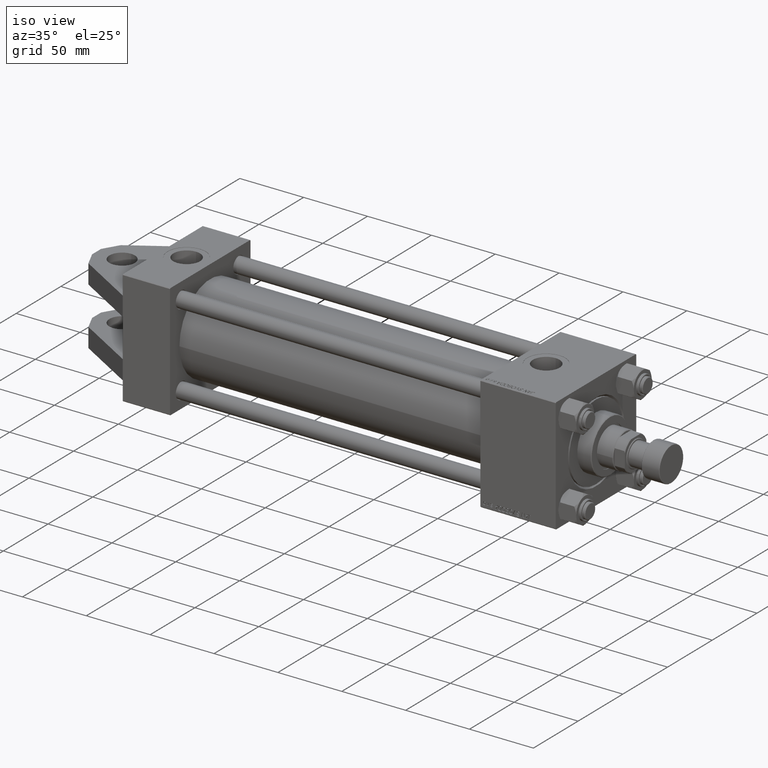
[diagram: clean part render]
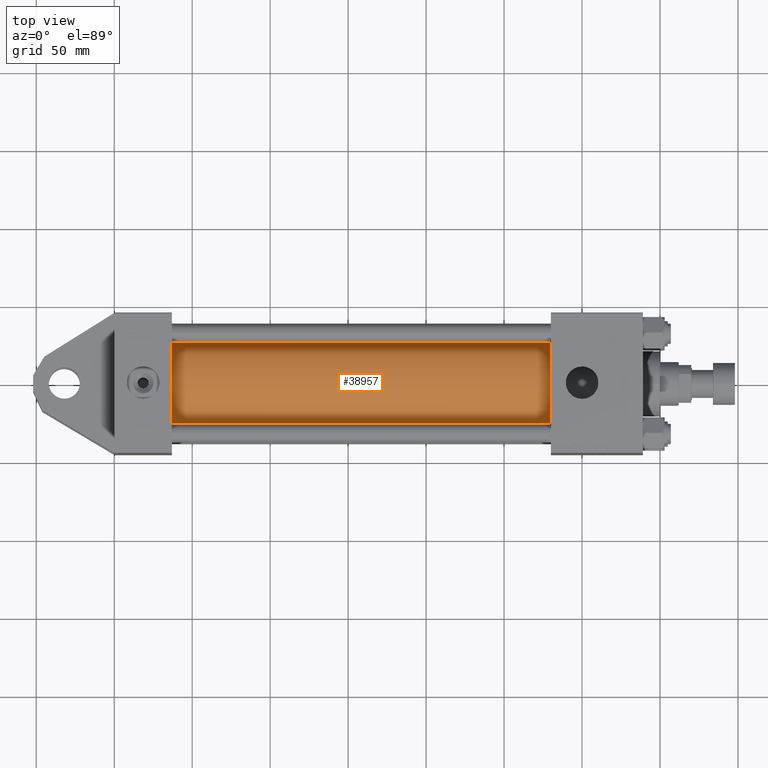
[diagram: tour spotlight — one face highlighted and labeled with its STEP entity id]
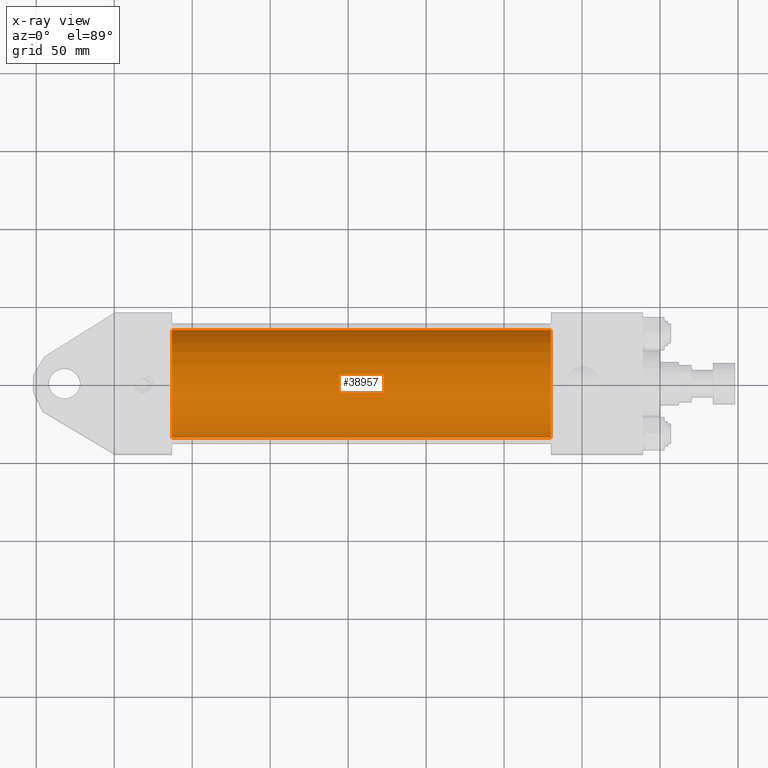
[diagram: x-ray of the same camera — body ghosted, this tour face saturated]
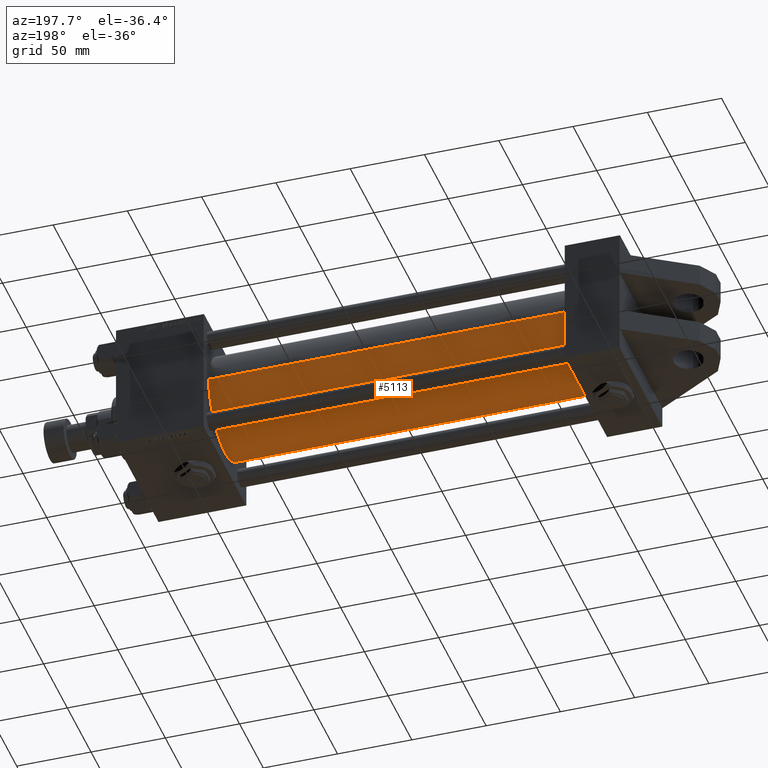
[diagram: tour spotlight — one face highlighted and labeled with its STEP entity id]
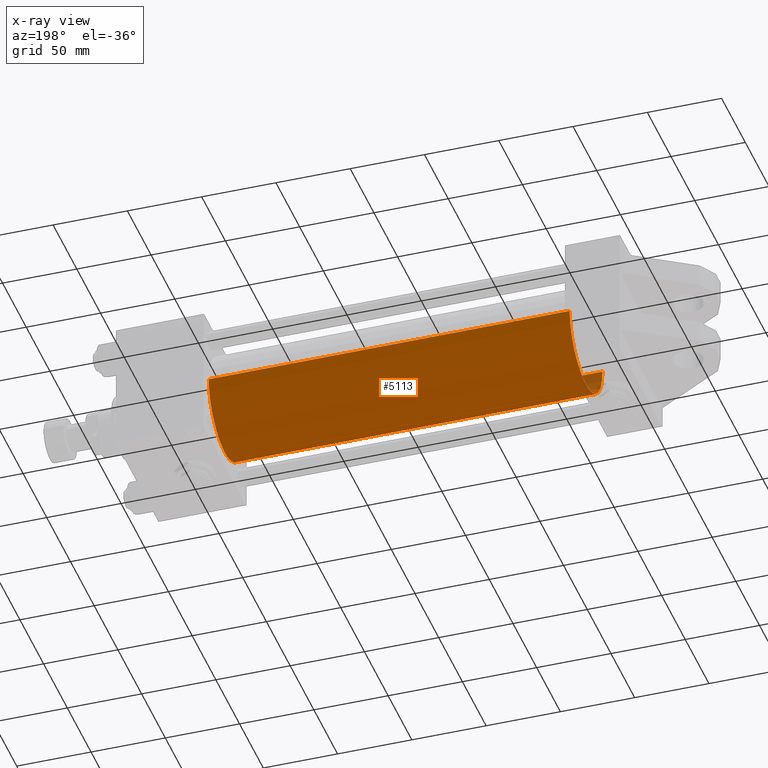
[diagram: x-ray of the same camera — body ghosted, this tour face saturated]
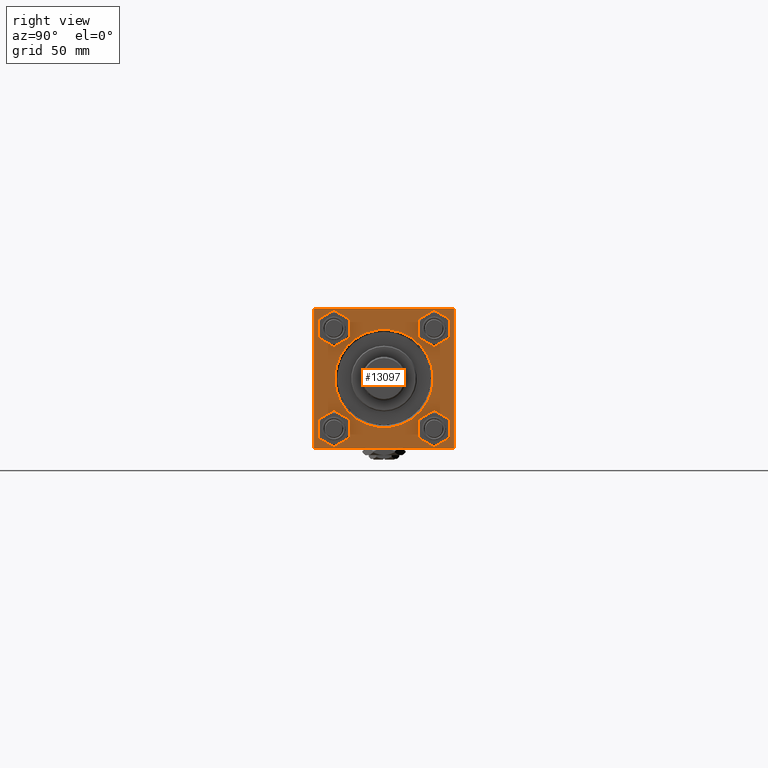
[diagram: tour spotlight — one face highlighted and labeled with its STEP entity id]
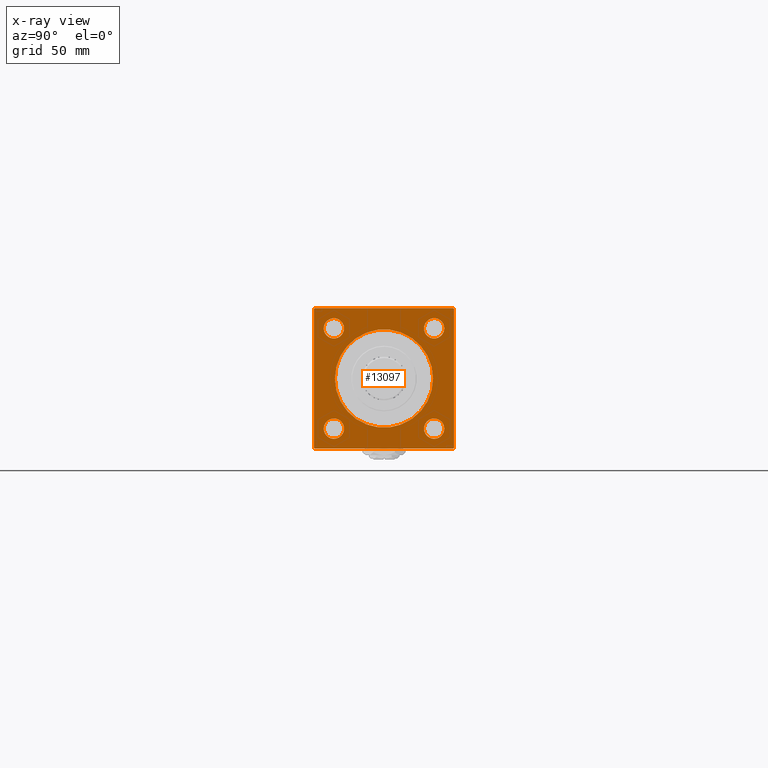
[diagram: x-ray of the same camera — body ghosted, this tour face saturated]
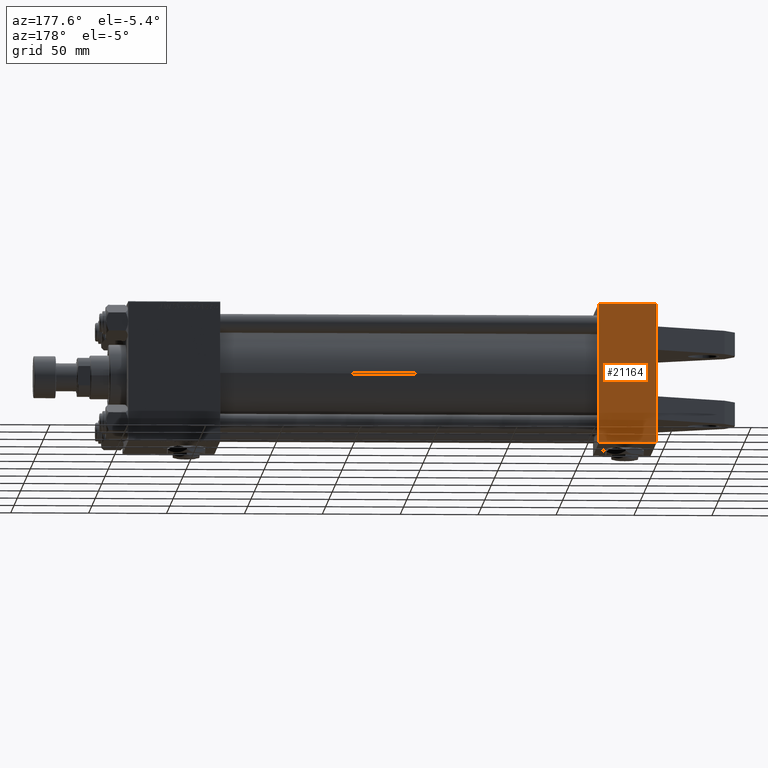
[diagram: tour spotlight — one face highlighted and labeled with its STEP entity id]
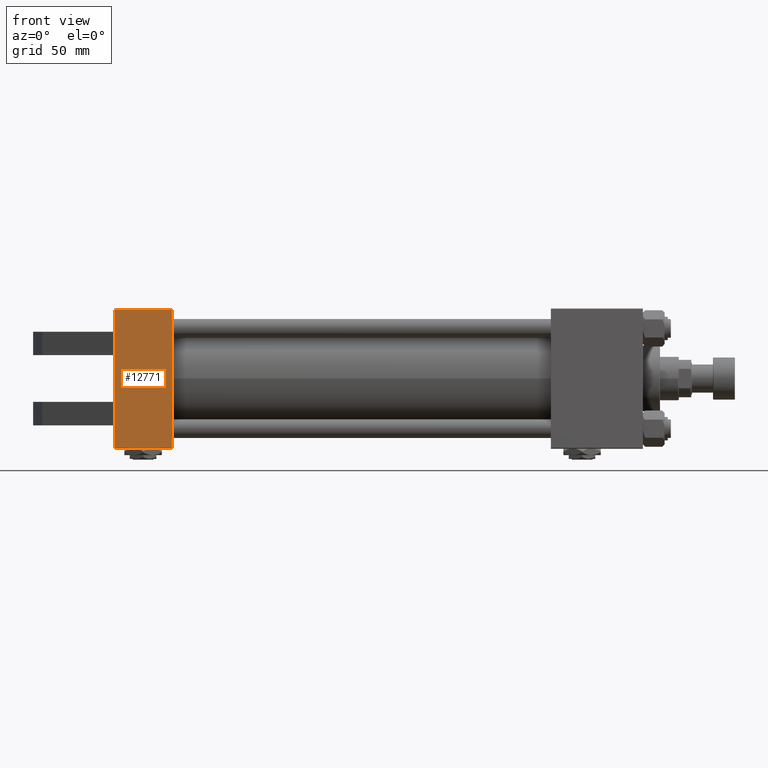
[diagram: tour spotlight — one face highlighted and labeled with its STEP entity id]
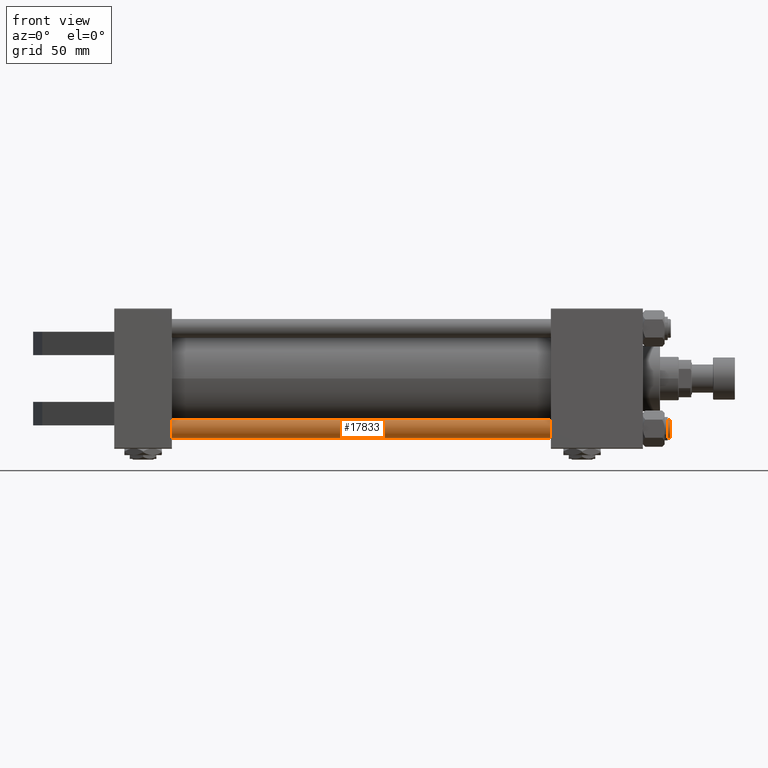
[diagram: tour spotlight — one face highlighted and labeled with its STEP entity id]
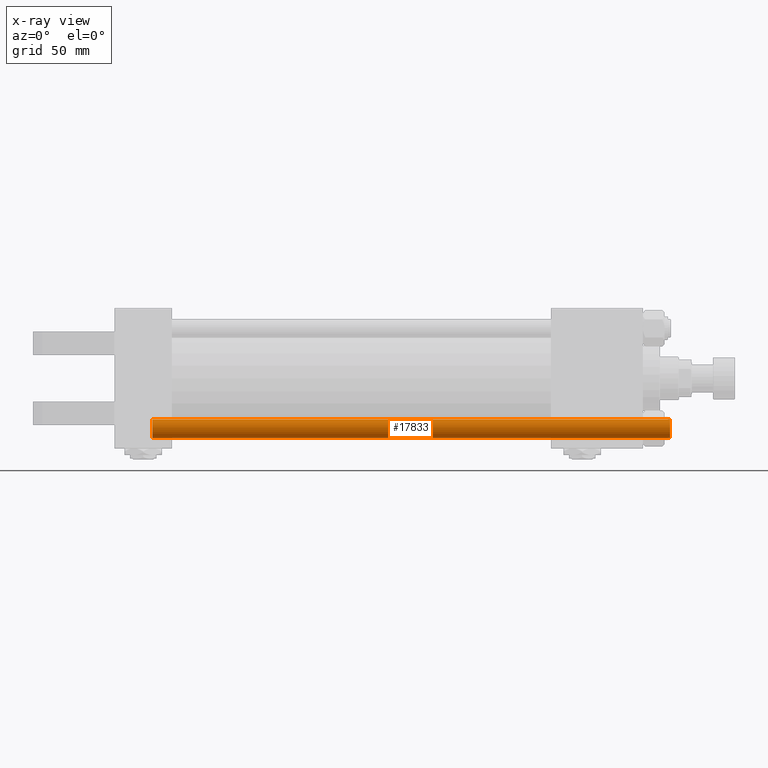
[diagram: x-ray of the same camera — body ghosted, this tour face saturated]
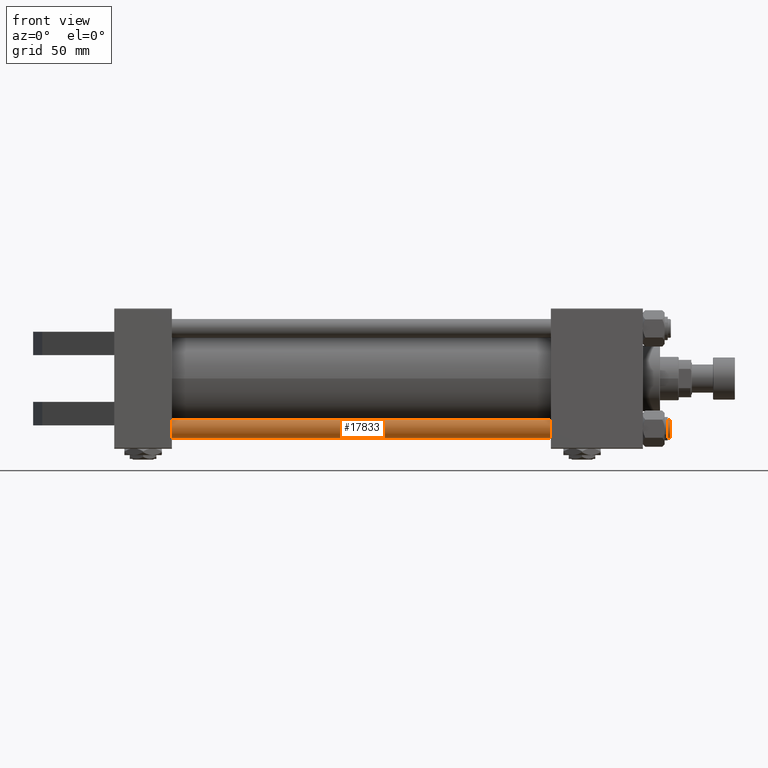
[diagram: tour spotlight — one face highlighted and labeled with its STEP entity id]
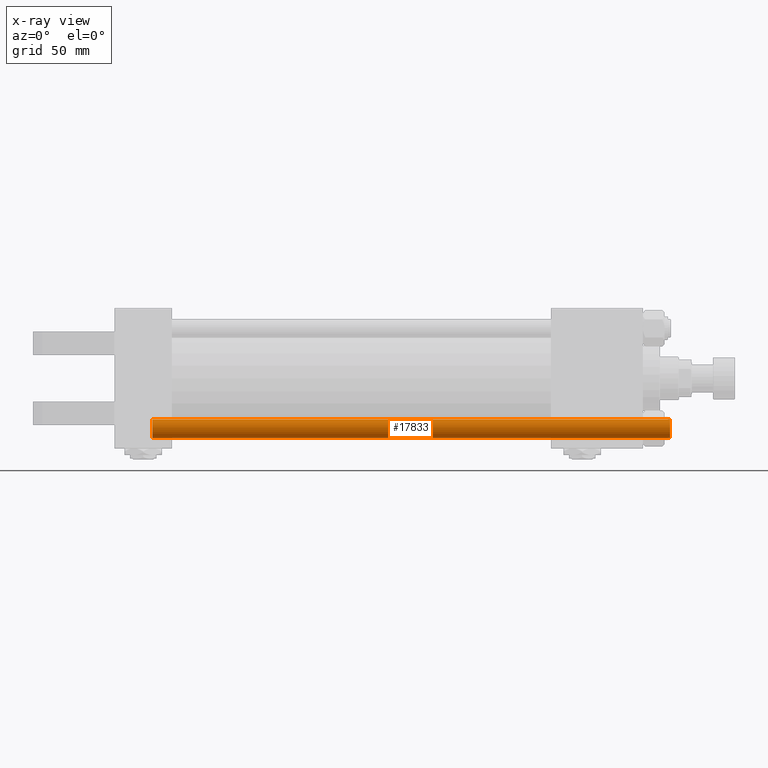
[diagram: x-ray of the same camera — body ghosted, this tour face saturated]
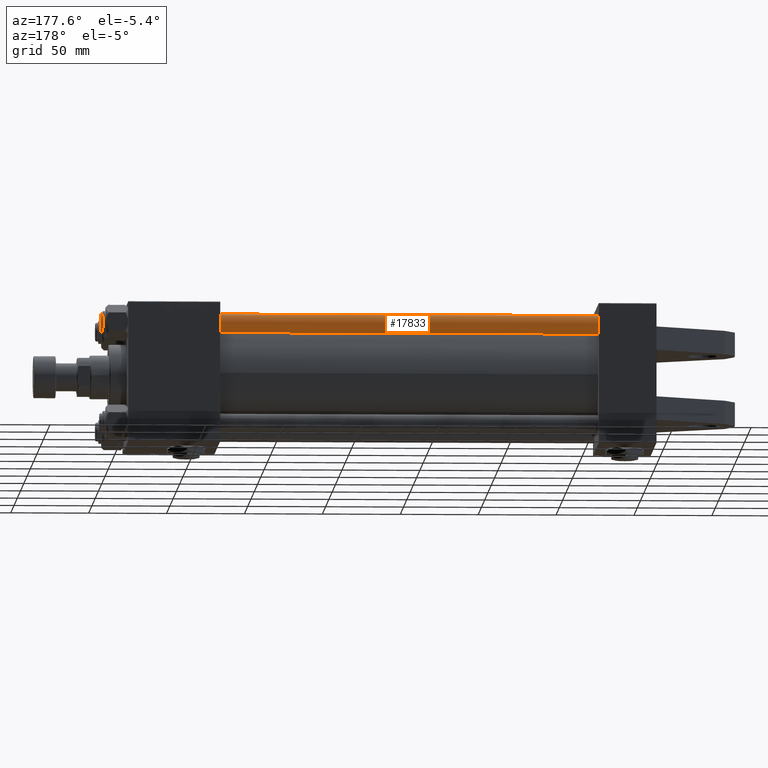
[diagram: tour spotlight — one face highlighted and labeled with its STEP entity id]
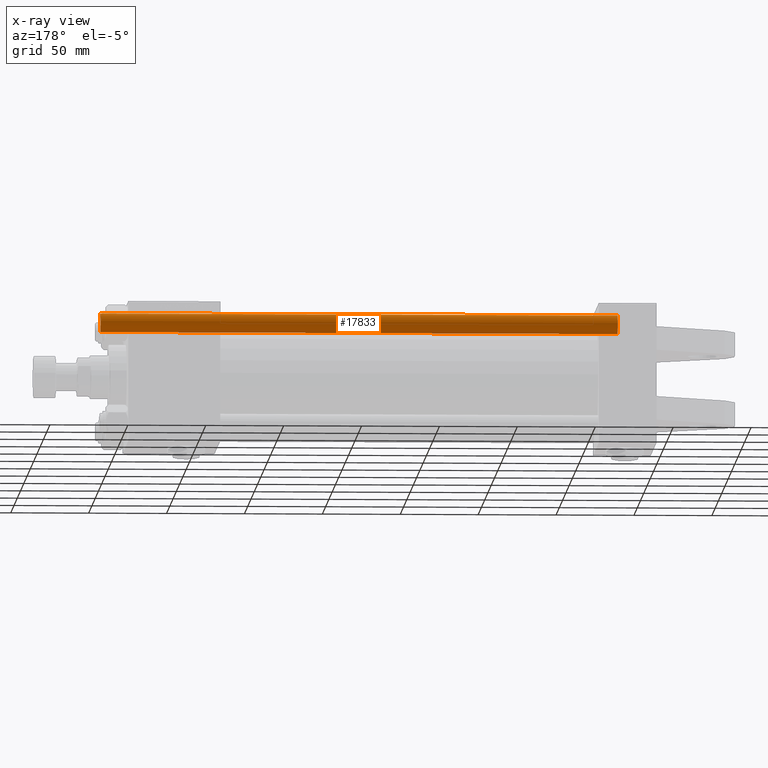
[diagram: x-ray of the same camera — body ghosted, this tour face saturated]
A machine part: a face-by-face anatomy tour. The part has 1244 B-rep faces; the first image is the clean iso view, then the 8 largest visible faces are spotlighted one at a time (largest first), each with its STEP entity span.

Face 1 — top view, entity #38957. An x-ray twin of the same camera follows (body ghosted, this face saturated) — the face is partly hidden behind the body. In plain terms, the highlighted cylindrical surface (partial cylindrical patch) has radius 34.5 mm, axis along (-1, -0, 0).
Definition (entity closure, byte-faithful):
#274 = EDGE_CURVE ( 'NONE', #37276, #15773, #41613, .T. ) ;
#1357 = DIRECTION ( 'NONE',  ( 0.000000000000000000, 0.000000000000000000, 1.000000000000000000 ) ) ;
#1564 = CARTESIAN_POINT ( 'NONE',  ( 37.00000000000000711, 7.555845051047534515E-16, -34.49999999999999289 ) ) ;
#3101 = ORIENTED_EDGE ( 'NONE', *, *, #42534, .T. ) ;
#4384 = EDGE_LOOP ( 'NONE', ( #41202, #33263, #3101, #28531 ) ) ;
#5592 = DIRECTION ( 'NONE',  ( 1.000000000000000000, -0.000000000000000000, 0.000000000000000000 ) ) ;
#6102 = CARTESIAN_POINT ( 'NONE',  ( 279.9999999999999432, -3.469446951953614189E-15, 34.49999999999999289 ) ) ;
#6133 = AXIS2_PLACEMENT_3D ( 'NONE', #38522, #46949, #39291 ) ;
#6484 = EDGE_CURVE ( 'NONE', #39722, #21402, #36788, .T. ) ;
#10266 = VECTOR ( 'NONE', #14833, 1000.000000000000000 ) ;
#10918 = LINE ( 'NONE', #18600, #33555 ) ;
#12742 = CARTESIAN_POINT ( 'NONE',  ( 279.9999999999999432, 7.555845051047534515E-16, -34.49999999999999289 ) ) ;
#14577 = LINE ( 'NONE', #30719, #10266 ) ;
#14833 = DIRECTION ( 'NONE',  ( -1.000000000000000000, -0.000000000000000000, -0.000000000000000000 ) ) ;
#15773 = VERTEX_POINT ( 'NONE', #12742 ) ;
#15843 = CARTESIAN_POINT ( 'NONE',  ( 37.00000000000000711, -3.469446951953614189E-15, 34.49999999999999289 ) ) ;
#18452 = CYLINDRICAL_SURFACE ( 'NONE', #28735, 34.49999999999999289 ) ;
#18600 = CARTESIAN_POINT ( 'NONE',  ( 279.9999999999999432, 7.555845051047534515E-16, -34.49999999999999289 ) ) ;
#19118 = DIRECTION ( 'NONE',  ( -1.000000000000000000, -0.000000000000000000, -0.000000000000000000 ) ) ;
#21402 = VERTEX_POINT ( 'NONE', #1564 ) ;
#26513 = CARTESIAN_POINT ( 'NONE',  ( 37.00000000000000711, -3.469446951953614189E-15, 0.000000000000000000 ) ) ;
#27934 = DIRECTION ( 'NONE',  ( 0.000000000000000000, 0.000000000000000000, 1.000000000000000000 ) ) ;
#28531 = ORIENTED_EDGE ( 'NONE', *, *, #6484, .T. ) ;
#28735 = AXIS2_PLACEMENT_3D ( 'NONE', #34582, #30611, #27934 ) ;
#30611 = DIRECTION ( 'NONE',  ( -1.000000000000000000, -0.000000000000000000, -0.000000000000000000 ) ) ;
#30719 = CARTESIAN_POINT ( 'NONE',  ( 279.9999999999999432, -3.469446951953614189E-15, 34.49999999999999289 ) ) ;
#33263 = ORIENTED_EDGE ( 'NONE', *, *, #274, .F. ) ;
#33555 = VECTOR ( 'NONE', #19118, 1000.000000000000000 ) ;
#34582 = CARTESIAN_POINT ( 'NONE',  ( 279.9999999999999432, -3.469446951953614189E-15, 0.000000000000000000 ) ) ;
#36788 = CIRCLE ( 'NONE', #43528, 34.49999999999999289 ) ;
#37276 = VERTEX_POINT ( 'NONE', #6102 ) ;
#38522 = CARTESIAN_POINT ( 'NONE',  ( 279.9999999999999432, -3.469446951953614189E-15, 0.000000000000000000 ) ) ;
#38957 = ADVANCED_FACE ( 'NONE', ( #50664 ), #18452, .T. ) ;
#39291 = DIRECTION ( 'NONE',  ( 0.000000000000000000, 0.000000000000000000, -1.000000000000000000 ) ) ;
#39722 = VERTEX_POINT ( 'NONE', #15843 ) ;
#41202 = ORIENTED_EDGE ( 'NONE', *, *, #51044, .F. ) ;
#41613 = CIRCLE ( 'NONE', #6133, 34.49999999999999289 ) ;
#42534 = EDGE_CURVE ( 'NONE', #37276, #39722, #14577, .T. ) ;
#43528 = AXIS2_PLACEMENT_3D ( 'NONE', #26513, #5592, #1357 ) ;
#46949 = DIRECTION ( 'NONE',  ( 1.000000000000000000, 0.000000000000000000, 0.000000000000000000 ) ) ;
#50664 = FACE_OUTER_BOUND ( 'NONE', #4384, .T. ) ;
#51044 = EDGE_CURVE ( 'NONE', #15773, #21402, #10918, .T. ) ;

Face 2 — auxiliary view, entity #5113. An x-ray twin of the same camera follows (body ghosted, this face saturated) — the face is partly hidden behind the body. In plain terms, the highlighted cylindrical surface (partial cylindrical patch) has radius 34.5 mm, axis along (-1, -0, 0).
Definition (entity closure, byte-faithful):
#1564 = CARTESIAN_POINT ( 'NONE',  ( 37.00000000000000711, 7.555845051047534515E-16, -34.49999999999999289 ) ) ;
#2776 = ORIENTED_EDGE ( 'NONE', *, *, #50555, .T. ) ;
#5113 = ADVANCED_FACE ( 'NONE', ( #13345 ), #34230, .T. ) ;
#6102 = CARTESIAN_POINT ( 'NONE',  ( 279.9999999999999432, -3.469446951953614189E-15, 34.49999999999999289 ) ) ;
#7819 = DIRECTION ( 'NONE',  ( 1.000000000000000000, -0.000000000000000000, 0.000000000000000000 ) ) ;
#10266 = VECTOR ( 'NONE', #14833, 1000.000000000000000 ) ;
#10280 = ORIENTED_EDGE ( 'NONE', *, *, #51044, .T. ) ;
#10918 = LINE ( 'NONE', #18600, #33555 ) ;
#12742 = CARTESIAN_POINT ( 'NONE',  ( 279.9999999999999432, 7.555845051047534515E-16, -34.49999999999999289 ) ) ;
#12924 = ORIENTED_EDGE ( 'NONE', *, *, #51211, .F. ) ;
#13345 = FACE_OUTER_BOUND ( 'NONE', #15059, .T. ) ;
#14577 = LINE ( 'NONE', #30719, #10266 ) ;
#14833 = DIRECTION ( 'NONE',  ( -1.000000000000000000, -0.000000000000000000, -0.000000000000000000 ) ) ;
#15059 = EDGE_LOOP ( 'NONE', ( #12924, #10280, #2776, #31145 ) ) ;
#15773 = VERTEX_POINT ( 'NONE', #12742 ) ;
#15843 = CARTESIAN_POINT ( 'NONE',  ( 37.00000000000000711, -3.469446951953614189E-15, 34.49999999999999289 ) ) ;
#18600 = CARTESIAN_POINT ( 'NONE',  ( 279.9999999999999432, 7.555845051047534515E-16, -34.49999999999999289 ) ) ;
#19118 = DIRECTION ( 'NONE',  ( -1.000000000000000000, -0.000000000000000000, -0.000000000000000000 ) ) ;
#19215 = CIRCLE ( 'NONE', #46200, 34.49999999999999289 ) ;
#19632 = DIRECTION ( 'NONE',  ( 1.000000000000000000, 0.000000000000000000, 0.000000000000000000 ) ) ;
#19852 = AXIS2_PLACEMENT_3D ( 'NONE', #25520, #22059, #21282 ) ;
#21282 = DIRECTION ( 'NONE',  ( 0.000000000000000000, 0.000000000000000000, 1.000000000000000000 ) ) ;
#21402 = VERTEX_POINT ( 'NONE', #1564 ) ;
#22059 = DIRECTION ( 'NONE',  ( -1.000000000000000000, -0.000000000000000000, -0.000000000000000000 ) ) ;
#23600 = DIRECTION ( 'NONE',  ( 0.000000000000000000, 0.000000000000000000, -1.000000000000000000 ) ) ;
#24504 = DIRECTION ( 'NONE',  ( 0.000000000000000000, 0.000000000000000000, 1.000000000000000000 ) ) ;
#25520 = CARTESIAN_POINT ( 'NONE',  ( 279.9999999999999432, -3.469446951953614189E-15, 0.000000000000000000 ) ) ;
#30719 = CARTESIAN_POINT ( 'NONE',  ( 279.9999999999999432, -3.469446951953614189E-15, 34.49999999999999289 ) ) ;
#31145 = ORIENTED_EDGE ( 'NONE', *, *, #42534, .F. ) ;
#33555 = VECTOR ( 'NONE', #19118, 1000.000000000000000 ) ;
#34230 = CYLINDRICAL_SURFACE ( 'NONE', #19852, 34.49999999999999289 ) ;
#37276 = VERTEX_POINT ( 'NONE', #6102 ) ;
#37743 = AXIS2_PLACEMENT_3D ( 'NONE', #44047, #7819, #24504 ) ;
#39716 = CARTESIAN_POINT ( 'NONE',  ( 279.9999999999999432, -3.469446951953614189E-15, 0.000000000000000000 ) ) ;
#39722 = VERTEX_POINT ( 'NONE', #15843 ) ;
#42534 = EDGE_CURVE ( 'NONE', #37276, #39722, #14577, .T. ) ;
#42835 = CIRCLE ( 'NONE', #37743, 34.49999999999999289 ) ;
#44047 = CARTESIAN_POINT ( 'NONE',  ( 37.00000000000000711, -3.469446951953614189E-15, 0.000000000000000000 ) ) ;
#46200 = AXIS2_PLACEMENT_3D ( 'NONE', #39716, #19632, #23600 ) ;
#50555 = EDGE_CURVE ( 'NONE', #21402, #39722, #42835, .T. ) ;
#51044 = EDGE_CURVE ( 'NONE', #15773, #21402, #10918, .T. ) ;
#51211 = EDGE_CURVE ( 'NONE', #15773, #37276, #19215, .T. ) ;

Face 3 — right view, entity #13097. An x-ray twin of the same camera follows (body ghosted, this face saturated) — the face is partly hidden behind the body. In plain terms, the highlighted planar face has unit normal (-1, 0, -0).
Definition (entity closure, byte-faithful):
#231 = AXIS2_PLACEMENT_3D ( 'NONE', #24483, #44804, #36630 ) ;
#453 = ORIENTED_EDGE ( 'NONE', *, *, #1039, .T. ) ;
#557 = DIRECTION ( 'NONE',  ( -1.000000000000000000, -0.000000000000000000, -0.000000000000000000 ) ) ;
#710 = CARTESIAN_POINT ( 'NONE',  ( 338.9999999999999432, -32.15000000000001279, -38.65000000000006963 ) ) ;
#719 = CARTESIAN_POINT ( 'NONE',  ( 338.9999999999999432, 0.000000000000000000, 0.000000000000000000 ) ) ;
#824 = CARTESIAN_POINT ( 'NONE',  ( 338.9999999999999432, 0.000000000000000000, 0.000000000000000000 ) ) ;
#1016 = DIRECTION ( 'NONE',  ( -1.000000000000000000, -0.000000000000000000, -0.000000000000000000 ) ) ;
#1039 = EDGE_CURVE ( 'NONE', #39748, #24574, #7397, .T. ) ;
#1101 = EDGE_CURVE ( 'NONE', #25341, #12750, #34044, .T. ) ;
#1901 = CARTESIAN_POINT ( 'NONE',  ( 338.9999999999999432, -44.50000000000002842, 44.99999999999998579 ) ) ;
#1942 = EDGE_LOOP ( 'NONE', ( #453, #8177, #31412, #2916, #28623, #2731, #25021, #34209 ) ) ;
#2036 = VECTOR ( 'NONE', #44218, 1000.000000000000000 ) ;
#2300 = AXIS2_PLACEMENT_3D ( 'NONE', #21036, #41113, #37942 ) ;
#2425 = CIRCLE ( 'NONE', #28595, 6.500000000000061284 ) ;
#2500 = CARTESIAN_POINT ( 'NONE',  ( 338.9999999999999432, -45.00000000000000000, 44.50000000000004263 ) ) ;
#2731 = ORIENTED_EDGE ( 'NONE', *, *, #49657, .T. ) ;
#2916 = ORIENTED_EDGE ( 'NONE', *, *, #27440, .T. ) ;
#3131 = DIRECTION ( 'NONE',  ( -0.000000000000000000, 0.000000000000000000, 1.000000000000000000 ) ) ;
#3897 = EDGE_CURVE ( 'NONE', #12750, #25341, #31585, .T. ) ;
#4124 = CARTESIAN_POINT ( 'NONE',  ( 338.9999999999999432, 44.50000000000001421, -45.00000000000000000 ) ) ;
#4171 = DIRECTION ( 'NONE',  ( -1.000000000000000000, -0.000000000000000000, -0.000000000000000000 ) ) ;
#4609 = VERTEX_POINT ( 'NONE', #710 ) ;
#4636 = VERTEX_POINT ( 'NONE', #9175 ) ;
#5005 = CARTESIAN_POINT ( 'NONE',  ( 338.9999999999999432, 32.14999999999999147, 25.64999999999994529 ) ) ;
#5594 = CIRCLE ( 'NONE', #26012, 6.500000000000061284 ) ;
#5748 = EDGE_LOOP ( 'NONE', ( #35710, #19834 ) ) ;
#6227 = EDGE_LOOP ( 'NONE', ( #13392, #42720 ) ) ;
#6293 = DIRECTION ( 'NONE',  ( 0.000000000000000000, 0.000000000000000000, 1.000000000000000000 ) ) ;
#6296 = VERTEX_POINT ( 'NONE', #12503 ) ;
#6530 = DIRECTION ( 'NONE',  ( 0.000000000000000000, 0.000000000000000000, 1.000000000000000000 ) ) ;
#6950 = EDGE_CURVE ( 'NONE', #27708, #20533, #46051, .T. ) ;
#7359 = FACE_BOUND ( 'NONE', #5748, .T. ) ;
#7397 = LINE ( 'NONE', #24063, #18882 ) ;
#7719 = LINE ( 'NONE', #23359, #9244 ) ;
#7726 = EDGE_LOOP ( 'NONE', ( #19989, #29795 ) ) ;
#8177 = ORIENTED_EDGE ( 'NONE', *, *, #43738, .T. ) ;
#8213 = DIRECTION ( 'NONE',  ( 0.000000000000000000, 0.000000000000000000, 1.000000000000000000 ) ) ;
#9175 = CARTESIAN_POINT ( 'NONE',  ( 338.9999999999999432, 45.00000000000001421, -44.49999999999997158 ) ) ;
#9244 = VECTOR ( 'NONE', #20176, 1000.000000000000000 ) ;
#9379 = AXIS2_PLACEMENT_3D ( 'NONE', #824, #557, #6293 ) ;
#11097 = DIRECTION ( 'NONE',  ( 0.000000000000000000, 0.7071067811865525687, -0.7071067811865425767 ) ) ;
#11350 = ORIENTED_EDGE ( 'NONE', *, *, #13037, .T. ) ;
#11972 = EDGE_CURVE ( 'NONE', #20533, #27708, #5594, .T. ) ;
#12503 = CARTESIAN_POINT ( 'NONE',  ( 338.9999999999999432, 3.857637417314179255E-15, 31.50000000000013856 ) ) ;
#12667 = DIRECTION ( 'NONE',  ( 0.000000000000000000, -0.7071067811865474617, 0.7071067811865474617 ) ) ;
#12750 = VERTEX_POINT ( 'NONE', #51556 ) ;
#13037 = EDGE_CURVE ( 'NONE', #23823, #4609, #49497, .T. ) ;
#13097 = ADVANCED_FACE ( 'NONE', ( #51493, #23768, #7359, #39882, #14533, #35669 ), #31699, .F. ) ;
#13102 = CARTESIAN_POINT ( 'NONE',  ( 338.9999999999999432, 45.00000000000001421, -45.00000000000000000 ) ) ;
#13392 = ORIENTED_EDGE ( 'NONE', *, *, #1101, .T. ) ;
#13640 = VERTEX_POINT ( 'NONE', #1901 ) ;
#14533 = FACE_BOUND ( 'NONE', #7726, .T. ) ;
#15313 = CARTESIAN_POINT ( 'NONE',  ( 338.9999999999999432, 0.000000000000000000, 0.000000000000000000 ) ) ;
#15826 = CIRCLE ( 'NONE', #2300, 6.500000000000061284 ) ;
#16049 = CIRCLE ( 'NONE', #49781, 31.50000000000013856 ) ;
#16638 = LINE ( 'NONE', #48852, #47849 ) ;
#17648 = CARTESIAN_POINT ( 'NONE',  ( 338.9999999999999432, -32.14999999999999147, 38.65000000000006253 ) ) ;
#17780 = EDGE_CURVE ( 'NONE', #41217, #26948, #36578, .T. ) ;
#18426 = CARTESIAN_POINT ( 'NONE',  ( 338.9999999999999432, 32.14999999999999147, -32.15000000000000568 ) ) ;
#18705 = CIRCLE ( 'NONE', #9379, 31.50000000000013856 ) ;
#18882 = VECTOR ( 'NONE', #28558, 1000.000000000000000 ) ;
#19126 = CARTESIAN_POINT ( 'NONE',  ( 338.9999999999999432, -32.14999999999999147, 25.64999999999993108 ) ) ;
#19279 = DIRECTION ( 'NONE',  ( -1.000000000000000000, -0.000000000000000000, -0.000000000000000000 ) ) ;
#19532 = DIRECTION ( 'NONE',  ( 0.000000000000000000, 0.000000000000000000, 1.000000000000000000 ) ) ;
#19560 = VECTOR ( 'NONE', #30807, 1000.000000000000114 ) ;
#19816 = CARTESIAN_POINT ( 'NONE',  ( 338.9999999999999432, -45.00000000000000000, 44.50000000000004263 ) ) ;
#19834 = ORIENTED_EDGE ( 'NONE', *, *, #6950, .T. ) ;
#19889 = AXIS2_PLACEMENT_3D ( 'NONE', #50965, #19279, #19532 ) ;
#19989 = ORIENTED_EDGE ( 'NONE', *, *, #38077, .T. ) ;
#20058 = EDGE_CURVE ( 'NONE', #38987, #4636, #49204, .T. ) ;
#20176 = DIRECTION ( 'NONE',  ( 0.000000000000000000, -1.000000000000000000, -1.541976423090495140E-16 ) ) ;
#20322 = DIRECTION ( 'NONE',  ( 0.000000000000000000, 0.000000000000000000, 1.000000000000000000 ) ) ;
#20460 = VECTOR ( 'NONE', #11097, 999.9999999999998863 ) ;
#20533 = VERTEX_POINT ( 'NONE', #5005 ) ;
#20821 = AXIS2_PLACEMENT_3D ( 'NONE', #45979, #50196, #38343 ) ;
#21036 = CARTESIAN_POINT ( 'NONE',  ( 338.9999999999999432, -32.14999999999999147, 32.14999999999999147 ) ) ;
#23013 = CARTESIAN_POINT ( 'NONE',  ( 338.9999999999999432, -44.49999999999998579, -45.00000000000000000 ) ) ;
#23359 = CARTESIAN_POINT ( 'NONE',  ( 338.9999999999999432, 45.00000000000001421, 45.00000000000000000 ) ) ;
#23768 = FACE_BOUND ( 'NONE', #6227, .T. ) ;
#23823 = VERTEX_POINT ( 'NONE', #28515 ) ;
#24063 = CARTESIAN_POINT ( 'NONE',  ( 338.9999999999999432, -45.00000000000000000, 44.99999999999998579 ) ) ;
#24082 = DIRECTION ( 'NONE',  ( -0.000000000000000000, 0.7071067811865474617, 0.7071067811865474617 ) ) ;
#24220 = CARTESIAN_POINT ( 'NONE',  ( 338.9999999999999432, 32.14999999999999147, 38.65000000000007674 ) ) ;
#24376 = CARTESIAN_POINT ( 'NONE',  ( 338.9999999999999432, 32.14999999999999147, 32.15000000000000568 ) ) ;
#24483 = CARTESIAN_POINT ( 'NONE',  ( 338.9999999999999432, -32.14999999999999147, 32.14999999999999147 ) ) ;
#24574 = VERTEX_POINT ( 'NONE', #33925 ) ;
#25021 = ORIENTED_EDGE ( 'NONE', *, *, #37048, .T. ) ;
#25341 = VERTEX_POINT ( 'NONE', #51377 ) ;
#26012 = AXIS2_PLACEMENT_3D ( 'NONE', #24376, #40996, #8213 ) ;
#26397 = VERTEX_POINT ( 'NONE', #4124 ) ;
#26898 = DIRECTION ( 'NONE',  ( -1.000000000000000000, -0.000000000000000000, -0.000000000000000000 ) ) ;
#26948 = VERTEX_POINT ( 'NONE', #17648 ) ;
#27440 = EDGE_CURVE ( 'NONE', #26397, #4636, #51550, .T. ) ;
#27708 = VERTEX_POINT ( 'NONE', #24220 ) ;
#27908 = EDGE_CURVE ( 'NONE', #26948, #41217, #15826, .T. ) ;
#27991 = CARTESIAN_POINT ( 'NONE',  ( 338.9999999999999432, 0.000000000000000000, -31.50000000000013856 ) ) ;
#28515 = CARTESIAN_POINT ( 'NONE',  ( 338.9999999999999432, -32.15000000000001279, -25.64999999999994529 ) ) ;
#28558 = DIRECTION ( 'NONE',  ( 0.000000000000000000, 7.709882115452478166E-17, -1.000000000000000000 ) ) ;
#28595 = AXIS2_PLACEMENT_3D ( 'NONE', #43273, #42762, #6530 ) ;
#28623 = ORIENTED_EDGE ( 'NONE', *, *, #20058, .F. ) ;
#29795 = ORIENTED_EDGE ( 'NONE', *, *, #41371, .T. ) ;
#30289 = CARTESIAN_POINT ( 'NONE',  ( 338.9999999999999432, 44.49999999999995737, 45.00000000000000000 ) ) ;
#30513 = VERTEX_POINT ( 'NONE', #27991 ) ;
#30807 = DIRECTION ( 'NONE',  ( -0.000000000000000000, -0.7071067811865474617, -0.7071067811865474617 ) ) ;
#30840 = DIRECTION ( 'NONE',  ( 0.000000000000000000, 0.000000000000000000, 1.000000000000000000 ) ) ;
#30990 = AXIS2_PLACEMENT_3D ( 'NONE', #15313, #47787, #3131 ) ;
#31249 = CARTESIAN_POINT ( 'NONE',  ( 338.9999999999999432, 45.00000000000001421, -44.50000000000000000 ) ) ;
#31412 = ORIENTED_EDGE ( 'NONE', *, *, #31920, .F. ) ;
#31585 = CIRCLE ( 'NONE', #50985, 6.500000000000054179 ) ;
#31675 = EDGE_CURVE ( 'NONE', #4609, #23823, #2425, .T. ) ;
#31699 = PLANE ( 'NONE',  #30990 ) ;
#31920 = EDGE_CURVE ( 'NONE', #26397, #33236, #41128, .T. ) ;
#33236 = VERTEX_POINT ( 'NONE', #46799 ) ;
#33290 = ORIENTED_EDGE ( 'NONE', *, *, #27908, .T. ) ;
#33925 = CARTESIAN_POINT ( 'NONE',  ( 338.9999999999999432, -44.99999999999999289, -44.49999999999997158 ) ) ;
#33988 = DIRECTION ( 'NONE',  ( 0.000000000000000000, -1.000000000000000000, 0.000000000000000000 ) ) ;
#34044 = CIRCLE ( 'NONE', #34922, 6.500000000000054179 ) ;
#34209 = ORIENTED_EDGE ( 'NONE', *, *, #43257, .T. ) ;
#34922 = AXIS2_PLACEMENT_3D ( 'NONE', #42011, #1016, #41229 ) ;
#35669 = FACE_OUTER_BOUND ( 'NONE', #1942, .T. ) ;
#35710 = ORIENTED_EDGE ( 'NONE', *, *, #11972, .T. ) ;
#36578 = CIRCLE ( 'NONE', #231, 6.500000000000061284 ) ;
#36630 = DIRECTION ( 'NONE',  ( 0.000000000000000000, 0.000000000000000000, 1.000000000000000000 ) ) ;
#37043 = VECTOR ( 'NONE', #33988, 1000.000000000000000 ) ;
#37048 = EDGE_CURVE ( 'NONE', #39084, #13640, #7719, .T. ) ;
#37942 = DIRECTION ( 'NONE',  ( 0.000000000000000000, 0.000000000000000000, 1.000000000000000000 ) ) ;
#38077 = EDGE_CURVE ( 'NONE', #30513, #6296, #16049, .T. ) ;
#38343 = DIRECTION ( 'NONE',  ( 0.000000000000000000, 0.000000000000000000, 1.000000000000000000 ) ) ;
#38987 = VERTEX_POINT ( 'NONE', #49032 ) ;
#39084 = VERTEX_POINT ( 'NONE', #30289 ) ;
#39748 = VERTEX_POINT ( 'NONE', #19816 ) ;
#39882 = FACE_BOUND ( 'NONE', #44210, .T. ) ;
#40996 = DIRECTION ( 'NONE',  ( -1.000000000000000000, -0.000000000000000000, -0.000000000000000000 ) ) ;
#41113 = DIRECTION ( 'NONE',  ( -1.000000000000000000, -0.000000000000000000, -0.000000000000000000 ) ) ;
#41128 = LINE ( 'NONE', #13102, #37043 ) ;
#41217 = VERTEX_POINT ( 'NONE', #19126 ) ;
#41229 = DIRECTION ( 'NONE',  ( 0.000000000000000000, 0.000000000000000000, 1.000000000000000000 ) ) ;
#41371 = EDGE_CURVE ( 'NONE', #6296, #30513, #18705, .T. ) ;
#42011 = CARTESIAN_POINT ( 'NONE',  ( 338.9999999999999432, 32.14999999999999147, -32.15000000000000568 ) ) ;
#42720 = ORIENTED_EDGE ( 'NONE', *, *, #3897, .T. ) ;
#42762 = DIRECTION ( 'NONE',  ( -1.000000000000000000, -0.000000000000000000, -0.000000000000000000 ) ) ;
#43257 = EDGE_CURVE ( 'NONE', #13640, #39748, #51382, .T. ) ;
#43273 = CARTESIAN_POINT ( 'NONE',  ( 338.9999999999999432, -32.15000000000001279, -32.15000000000000568 ) ) ;
#43738 = EDGE_CURVE ( 'NONE', #24574, #33236, #46521, .T. ) ;
#44210 = EDGE_LOOP ( 'NONE', ( #47487, #33290 ) ) ;
#44218 = DIRECTION ( 'NONE',  ( 0.000000000000000000, 0.000000000000000000, -1.000000000000000000 ) ) ;
#44804 = DIRECTION ( 'NONE',  ( -1.000000000000000000, -0.000000000000000000, -0.000000000000000000 ) ) ;
#45979 = CARTESIAN_POINT ( 'NONE',  ( 338.9999999999999432, -32.15000000000001279, -32.15000000000000568 ) ) ;
#46051 = CIRCLE ( 'NONE', #19889, 6.500000000000061284 ) ;
#46354 = ORIENTED_EDGE ( 'NONE', *, *, #31675, .T. ) ;
#46521 = LINE ( 'NONE', #23013, #20460 ) ;
#46799 = CARTESIAN_POINT ( 'NONE',  ( 338.9999999999999432, -44.49999999999995737, -45.00000000000000000 ) ) ;
#46968 = EDGE_LOOP ( 'NONE', ( #46354, #11350 ) ) ;
#47487 = ORIENTED_EDGE ( 'NONE', *, *, #17780, .T. ) ;
#47787 = DIRECTION ( 'NONE',  ( -1.000000000000000000, 0.000000000000000000, -0.000000000000000000 ) ) ;
#47849 = VECTOR ( 'NONE', #12667, 1000.000000000000114 ) ;
#48165 = CARTESIAN_POINT ( 'NONE',  ( 338.9999999999999432, 45.00000000000001421, 45.00000000000000000 ) ) ;
#48852 = CARTESIAN_POINT ( 'NONE',  ( 338.9999999999999432, 44.49999999999995737, 45.00000000000000000 ) ) ;
#49032 = CARTESIAN_POINT ( 'NONE',  ( 338.9999999999999432, 45.00000000000001421, 44.49999999999994316 ) ) ;
#49204 = LINE ( 'NONE', #48165, #2036 ) ;
#49497 = CIRCLE ( 'NONE', #20821, 6.500000000000061284 ) ;
#49657 = EDGE_CURVE ( 'NONE', #38987, #39084, #16638, .T. ) ;
#49781 = AXIS2_PLACEMENT_3D ( 'NONE', #719, #4171, #20322 ) ;
#50196 = DIRECTION ( 'NONE',  ( -1.000000000000000000, -0.000000000000000000, -0.000000000000000000 ) ) ;
#50965 = CARTESIAN_POINT ( 'NONE',  ( 338.9999999999999432, 32.14999999999999147, 32.15000000000000568 ) ) ;
#50985 = AXIS2_PLACEMENT_3D ( 'NONE', #18426, #26898, #30840 ) ;
#51377 = CARTESIAN_POINT ( 'NONE',  ( 338.9999999999999432, 32.14999999999999147, -38.65000000000006253 ) ) ;
#51382 = LINE ( 'NONE', #2500, #19560 ) ;
#51493 = FACE_BOUND ( 'NONE', #46968, .T. ) ;
#51550 = LINE ( 'NONE', #31249, #52053 ) ;
#51556 = CARTESIAN_POINT ( 'NONE',  ( 338.9999999999999432, 32.14999999999999147, -25.64999999999994884 ) ) ;
#52053 = VECTOR ( 'NONE', #24082, 1000.000000000000114 ) ;

Face 4 — auxiliary view, entity #21164. In plain terms, the highlighted planar face has unit normal (0, -1, -0).
Definition (entity closure, byte-faithful):
#784 = EDGE_CURVE ( 'NONE', #35265, #30589, #49190, .T. ) ;
#891 = VECTOR ( 'NONE', #29068, 1000.000000000000000 ) ;
#1220 = VERTEX_POINT ( 'NONE', #33308 ) ;
#2199 = VERTEX_POINT ( 'NONE', #42742 ) ;
#2231 = CARTESIAN_POINT ( 'NONE',  ( 0.000000000000000000, 44.49999999999998579, 45.00000000000001421 ) ) ;
#3538 = ORIENTED_EDGE ( 'NONE', *, *, #40590, .F. ) ;
#3877 = VERTEX_POINT ( 'NONE', #14444 ) ;
#4467 = DIRECTION ( 'NONE',  ( 1.000000000000000000, 0.000000000000000000, 0.000000000000000000 ) ) ;
#5348 = LINE ( 'NONE', #20987, #39708 ) ;
#7173 = LINE ( 'NONE', #51817, #22566 ) ;
#7223 = VERTEX_POINT ( 'NONE', #14392 ) ;
#9027 = EDGE_LOOP ( 'NONE', ( #36615, #25191, #47947, #25031, #47208, #32342, #3538, #45859 ) ) ;
#9592 = VERTEX_POINT ( 'NONE', #13823 ) ;
#10639 = VECTOR ( 'NONE', #46634, 1000.000000000000000 ) ;
#11884 = CARTESIAN_POINT ( 'NONE',  ( 0.000000000000000000, -44.49999999999995737, 45.00000000000000000 ) ) ;
#12780 = DIRECTION ( 'NONE',  ( 0.000000000000000000, -1.000000000000000000, -1.541976423090495387E-16 ) ) ;
#12925 = LINE ( 'NONE', #28543, #891 ) ;
#13816 = EDGE_CURVE ( 'NONE', #1220, #35265, #7173, .T. ) ;
#13823 = CARTESIAN_POINT ( 'NONE',  ( 0.000000000000000000, -29.99999999999997158, 45.00000000000000000 ) ) ;
#14208 = CARTESIAN_POINT ( 'NONE',  ( 0.000000000000000000, 44.99999999999998579, 45.00000000000001421 ) ) ;
#14392 = CARTESIAN_POINT ( 'NONE',  ( 37.00000000000000000, 44.49999999999998579, 45.00000000000001421 ) ) ;
#14444 = CARTESIAN_POINT ( 'NONE',  ( 37.00000000000000000, -44.49999999999995737, 45.00000000000000000 ) ) ;
#16205 = EDGE_CURVE ( 'NONE', #36108, #3877, #24591, .T. ) ;
#20987 = CARTESIAN_POINT ( 'NONE',  ( 0.000000000000000000, 44.99999999999998579, 45.00000000000001421 ) ) ;
#21164 = ADVANCED_FACE ( 'NONE', ( #40171 ), #43618, .F. ) ;
#22566 = VECTOR ( 'NONE', #23328, 1000.000000000000000 ) ;
#23328 = DIRECTION ( 'NONE',  ( 0.000000000000000000, -1.000000000000000000, -1.541976423090495387E-16 ) ) ;
#23838 = CARTESIAN_POINT ( 'NONE',  ( 0.000000000000000000, -30.00000000000000000, 45.00000000000000000 ) ) ;
#24591 = LINE ( 'NONE', #25380, #42411 ) ;
#25031 = ORIENTED_EDGE ( 'NONE', *, *, #45786, .F. ) ;
#25191 = ORIENTED_EDGE ( 'NONE', *, *, #784, .T. ) ;
#25380 = CARTESIAN_POINT ( 'NONE',  ( 37.00000000000000000, -44.49999999999998579, 45.00000000000000000 ) ) ;
#25487 = VECTOR ( 'NONE', #35483, 1000.000000000000000 ) ;
#26327 = LINE ( 'NONE', #2231, #10639 ) ;
#26652 = DIRECTION ( 'NONE',  ( 0.000000000000000000, -1.000000000000000000, -1.541976423090495387E-16 ) ) ;
#27019 = DIRECTION ( 'NONE',  ( 0.000000000000000000, 1.000000000000000000, 1.541976423090495633E-16 ) ) ;
#28543 = CARTESIAN_POINT ( 'NONE',  ( 37.00000000000000000, 44.99999999999998579, 45.00000000000001421 ) ) ;
#28759 = EDGE_CURVE ( 'NONE', #9592, #36108, #46694, .T. ) ;
#29068 = DIRECTION ( 'NONE',  ( 0.000000000000000000, -1.000000000000000000, -1.541976423090495387E-16 ) ) ;
#29821 = CARTESIAN_POINT ( 'NONE',  ( 0.000000000000000000, 15.00000000000000711, 45.00000000000000711 ) ) ;
#30589 = VERTEX_POINT ( 'NONE', #29821 ) ;
#30696 = VECTOR ( 'NONE', #37078, 1000.000000000000000 ) ;
#32342 = ORIENTED_EDGE ( 'NONE', *, *, #16205, .T. ) ;
#33308 = CARTESIAN_POINT ( 'NONE',  ( 0.000000000000000000, 44.49999999999998579, 45.00000000000001421 ) ) ;
#34417 = VECTOR ( 'NONE', #26652, 1000.000000000000000 ) ;
#35265 = VERTEX_POINT ( 'NONE', #47805 ) ;
#35483 = DIRECTION ( 'NONE',  ( -0.000000000000000000, 1.000000000000000000, -0.000000000000000000 ) ) ;
#36108 = VERTEX_POINT ( 'NONE', #11884 ) ;
#36615 = ORIENTED_EDGE ( 'NONE', *, *, #13816, .T. ) ;
#37078 = DIRECTION ( 'NONE',  ( -0.000000000000000000, -1.000000000000000000, -0.000000000000000000 ) ) ;
#37591 = CARTESIAN_POINT ( 'NONE',  ( 0.000000000000000000, 30.00000000000000000, 45.00000000000000000 ) ) ;
#39270 = EDGE_CURVE ( 'NONE', #30589, #2199, #5348, .T. ) ;
#39708 = VECTOR ( 'NONE', #12780, 1000.000000000000000 ) ;
#40171 = FACE_OUTER_BOUND ( 'NONE', #9027, .T. ) ;
#40590 = EDGE_CURVE ( 'NONE', #7223, #3877, #12925, .T. ) ;
#42411 = VECTOR ( 'NONE', #4467, 1000.000000000000000 ) ;
#42742 = CARTESIAN_POINT ( 'NONE',  ( 0.000000000000000000, -15.00000000000000000, 45.00000000000000000 ) ) ;
#43113 = DIRECTION ( 'NONE',  ( 0.000000000000000000, 1.541976423090495633E-16, -1.000000000000000000 ) ) ;
#43618 = PLANE ( 'NONE',  #48477 ) ;
#43659 = LINE ( 'NONE', #23838, #25487 ) ;
#45786 = EDGE_CURVE ( 'NONE', #9592, #2199, #43659, .T. ) ;
#45859 = ORIENTED_EDGE ( 'NONE', *, *, #48000, .T. ) ;
#46634 = DIRECTION ( 'NONE',  ( -1.000000000000000000, 0.000000000000000000, 0.000000000000000000 ) ) ;
#46694 = LINE ( 'NONE', #14208, #34417 ) ;
#47208 = ORIENTED_EDGE ( 'NONE', *, *, #28759, .T. ) ;
#47805 = CARTESIAN_POINT ( 'NONE',  ( 0.000000000000000000, 30.00000000000000355, 45.00000000000001421 ) ) ;
#47947 = ORIENTED_EDGE ( 'NONE', *, *, #39270, .T. ) ;
#48000 = EDGE_CURVE ( 'NONE', #7223, #1220, #26327, .T. ) ;
#48331 = CARTESIAN_POINT ( 'NONE',  ( 37.00000000000000000, 44.99999999999998579, 45.00000000000001421 ) ) ;
#48477 = AXIS2_PLACEMENT_3D ( 'NONE', #48331, #43113, #27019 ) ;
#49190 = LINE ( 'NONE', #37591, #30696 ) ;
#51817 = CARTESIAN_POINT ( 'NONE',  ( 0.000000000000000000, 44.99999999999998579, 45.00000000000001421 ) ) ;

Face 5 — front view, entity #12771. In plain terms, the highlighted planar face has unit normal (0, -1, -0).
Definition (entity closure, byte-faithful):
#311 = CARTESIAN_POINT ( 'NONE',  ( 0.000000000000000000, -15.00000000000000000, -45.00000000000000000 ) ) ;
#872 = EDGE_CURVE ( 'NONE', #18406, #20120, #6099, .T. ) ;
#1940 = VECTOR ( 'NONE', #13411, 1000.000000000000000 ) ;
#2606 = CARTESIAN_POINT ( 'NONE',  ( 0.000000000000000000, -44.49999999999998579, -45.00000000000000000 ) ) ;
#5452 = EDGE_CURVE ( 'NONE', #8080, #33620, #18836, .T. ) ;
#6099 = LINE ( 'NONE', #51277, #13764 ) ;
#6580 = LINE ( 'NONE', #2606, #25695 ) ;
#6906 = VECTOR ( 'NONE', #50170, 1000.000000000000000 ) ;
#7422 = FACE_OUTER_BOUND ( 'NONE', #12788, .T. ) ;
#8080 = VERTEX_POINT ( 'NONE', #46958 ) ;
#9271 = EDGE_CURVE ( 'NONE', #8080, #20120, #30026, .T. ) ;
#9658 = VECTOR ( 'NONE', #35539, 1000.000000000000000 ) ;
#11144 = PLANE ( 'NONE',  #41947 ) ;
#12771 = ADVANCED_FACE ( 'NONE', ( #7422 ), #11144, .T. ) ;
#12788 = EDGE_LOOP ( 'NONE', ( #16213, #26868, #25296, #38125, #38204, #33216, #26029, #50670 ) ) ;
#12886 = CARTESIAN_POINT ( 'NONE',  ( 37.00000000000000000, 44.99999999999998579, -44.99999999999998579 ) ) ;
#13411 = DIRECTION ( 'NONE',  ( 0.000000000000000000, -1.000000000000000000, -1.541976423090495633E-16 ) ) ;
#13764 = VECTOR ( 'NONE', #18290, 1000.000000000000000 ) ;
#13939 = CARTESIAN_POINT ( 'NONE',  ( 0.000000000000000000, 44.49999999999998579, -44.99999999999998579 ) ) ;
#14011 = CARTESIAN_POINT ( 'NONE',  ( 0.000000000000000000, 44.99999999999998579, -44.99999999999998579 ) ) ;
#14606 = VECTOR ( 'NONE', #30679, 1000.000000000000000 ) ;
#16213 = ORIENTED_EDGE ( 'NONE', *, *, #45980, .F. ) ;
#16356 = CARTESIAN_POINT ( 'NONE',  ( 37.00000000000000000, -44.49999999999995737, -45.00000000000000000 ) ) ;
#17341 = EDGE_CURVE ( 'NONE', #43775, #43137, #21348, .T. ) ;
#18290 = DIRECTION ( 'NONE',  ( 0.000000000000000000, -1.000000000000000000, -1.541976423090495633E-16 ) ) ;
#18406 = VERTEX_POINT ( 'NONE', #36417 ) ;
#18836 = LINE ( 'NONE', #38400, #24074 ) ;
#19358 = CARTESIAN_POINT ( 'NONE',  ( 37.00000000000000000, 44.99999999999998579, -44.99999999999998579 ) ) ;
#20120 = VERTEX_POINT ( 'NONE', #311 ) ;
#20705 = EDGE_CURVE ( 'NONE', #43137, #33620, #6580, .T. ) ;
#21348 = LINE ( 'NONE', #12886, #1940 ) ;
#22078 = EDGE_CURVE ( 'NONE', #37915, #18406, #47152, .T. ) ;
#22721 = CARTESIAN_POINT ( 'NONE',  ( 37.00000000000000000, 44.49999999999998579, -44.99999999999998579 ) ) ;
#22764 = CARTESIAN_POINT ( 'NONE',  ( 37.00000000000000000, 44.49999999999998579, -44.99999999999998579 ) ) ;
#23999 = CARTESIAN_POINT ( 'NONE',  ( 0.000000000000000000, -44.49999999999995737, -45.00000000000000000 ) ) ;
#24074 = VECTOR ( 'NONE', #38661, 1000.000000000000000 ) ;
#25296 = ORIENTED_EDGE ( 'NONE', *, *, #17341, .T. ) ;
#25695 = VECTOR ( 'NONE', #50962, 1000.000000000000000 ) ;
#25935 = VECTOR ( 'NONE', #42181, 1000.000000000000000 ) ;
#26029 = ORIENTED_EDGE ( 'NONE', *, *, #872, .F. ) ;
#26868 = ORIENTED_EDGE ( 'NONE', *, *, #42761, .T. ) ;
#27292 = DIRECTION ( 'NONE',  ( 0.000000000000000000, 1.000000000000000000, 1.541976423090495880E-16 ) ) ;
#30026 = LINE ( 'NONE', #38743, #25935 ) ;
#30679 = DIRECTION ( 'NONE',  ( 0.000000000000000000, -1.000000000000000000, -1.541976423090495633E-16 ) ) ;
#30697 = VERTEX_POINT ( 'NONE', #13939 ) ;
#30905 = LINE ( 'NONE', #22721, #6906 ) ;
#33216 = ORIENTED_EDGE ( 'NONE', *, *, #9271, .T. ) ;
#33620 = VERTEX_POINT ( 'NONE', #23999 ) ;
#35539 = DIRECTION ( 'NONE',  ( -0.000000000000000000, -1.000000000000000000, -0.000000000000000000 ) ) ;
#36417 = CARTESIAN_POINT ( 'NONE',  ( 0.000000000000000000, 15.00000000000000711, -44.99999999999999289 ) ) ;
#37915 = VERTEX_POINT ( 'NONE', #43328 ) ;
#38125 = ORIENTED_EDGE ( 'NONE', *, *, #20705, .T. ) ;
#38204 = ORIENTED_EDGE ( 'NONE', *, *, #5452, .F. ) ;
#38400 = CARTESIAN_POINT ( 'NONE',  ( 0.000000000000000000, 44.99999999999998579, -44.99999999999998579 ) ) ;
#38661 = DIRECTION ( 'NONE',  ( 0.000000000000000000, -1.000000000000000000, -1.541976423090495633E-16 ) ) ;
#38743 = CARTESIAN_POINT ( 'NONE',  ( 0.000000000000000000, -30.00000000000000000, -45.00000000000000000 ) ) ;
#39695 = DIRECTION ( 'NONE',  ( 0.000000000000000000, 1.541976423090495880E-16, -1.000000000000000000 ) ) ;
#41947 = AXIS2_PLACEMENT_3D ( 'NONE', #19358, #39695, #27292 ) ;
#42181 = DIRECTION ( 'NONE',  ( -0.000000000000000000, 1.000000000000000000, -0.000000000000000000 ) ) ;
#42761 = EDGE_CURVE ( 'NONE', #30697, #43775, #30905, .T. ) ;
#43137 = VERTEX_POINT ( 'NONE', #16356 ) ;
#43328 = CARTESIAN_POINT ( 'NONE',  ( 0.000000000000000000, 30.00000000000000000, -45.00000000000000000 ) ) ;
#43775 = VERTEX_POINT ( 'NONE', #22764 ) ;
#45980 = EDGE_CURVE ( 'NONE', #30697, #37915, #46765, .T. ) ;
#46765 = LINE ( 'NONE', #14011, #14606 ) ;
#46886 = CARTESIAN_POINT ( 'NONE',  ( 0.000000000000000000, 30.00000000000000000, -45.00000000000000000 ) ) ;
#46958 = CARTESIAN_POINT ( 'NONE',  ( 0.000000000000000000, -30.00000000000000000, -45.00000000000000000 ) ) ;
#47152 = LINE ( 'NONE', #46886, #9658 ) ;
#50170 = DIRECTION ( 'NONE',  ( 1.000000000000000000, 0.000000000000000000, 0.000000000000000000 ) ) ;
#50670 = ORIENTED_EDGE ( 'NONE', *, *, #22078, .F. ) ;
#50962 = DIRECTION ( 'NONE',  ( -1.000000000000000000, 0.000000000000000000, 0.000000000000000000 ) ) ;
#51277 = CARTESIAN_POINT ( 'NONE',  ( 0.000000000000000000, 44.99999999999998579, -44.99999999999998579 ) ) ;

Face 6 — front view, entity #17833. An x-ray twin of the same camera follows (body ghosted, this face saturated) — the face is partly hidden behind the body. In plain terms, the highlighted cylindrical surface (edge-blend (fillet) strip) has radius 6 mm, axis along (1, 0, 0).
Definition (entity closure, byte-faithful):
#305 = VERTEX_POINT ( 'NONE', #7281 ) ;
#4657 = EDGE_CURVE ( 'NONE', #44385, #20535, #29809, .T. ) ;
#4987 = EDGE_CURVE ( 'NONE', #305, #20535, #37550, .T. ) ;
#5443 = AXIS2_PLACEMENT_3D ( 'NONE', #28707, #16804, #44285 ) ;
#6027 = CIRCLE ( 'NONE', #12792, 6.000000000000000888 ) ;
#6936 = DIRECTION ( 'NONE',  ( -1.000000000000000000, 0.000000000000000000, 0.000000000000000000 ) ) ;
#7281 = CARTESIAN_POINT ( 'NONE',  ( 6.000000000000000888, 7.347880794884120722E-16, 0.5000000000000004441 ) ) ;
#10015 = ORIENTED_EDGE ( 'NONE', *, *, #48471, .T. ) ;
#12792 = AXIS2_PLACEMENT_3D ( 'NONE', #43473, #46898, #23136 ) ;
#15435 = ORIENTED_EDGE ( 'NONE', *, *, #4657, .F. ) ;
#16692 = CARTESIAN_POINT ( 'NONE',  ( 6.000000000000000888, 7.347880794884120722E-16, 333.0000000000000000 ) ) ;
#16804 = DIRECTION ( 'NONE',  ( -0.000000000000000000, -0.000000000000000000, 1.000000000000000000 ) ) ;
#17833 = ADVANCED_FACE ( 'NONE', ( #36021 ), #39976, .T. ) ;
#17905 = DIRECTION ( 'NONE',  ( -0.000000000000000000, -0.000000000000000000, -1.000000000000000000 ) ) ;
#18659 = VERTEX_POINT ( 'NONE', #39790 ) ;
#19669 = AXIS2_PLACEMENT_3D ( 'NONE', #47619, #43170, #6936 ) ;
#20535 = VERTEX_POINT ( 'NONE', #25129 ) ;
#23136 = DIRECTION ( 'NONE',  ( 1.000000000000000000, 0.000000000000000000, 0.000000000000000000 ) ) ;
#24106 = DIRECTION ( 'NONE',  ( -0.000000000000000000, -0.000000000000000000, -1.000000000000000000 ) ) ;
#25129 = CARTESIAN_POINT ( 'NONE',  ( -6.000000000000000888, 0.000000000000000000, 0.5000000000000004441 ) ) ;
#28707 = CARTESIAN_POINT ( 'NONE',  ( 0.000000000000000000, 0.000000000000000000, 0.5000000000000004441 ) ) ;
#29809 = LINE ( 'NONE', #37479, #34194 ) ;
#34194 = VECTOR ( 'NONE', #17905, 1000.000000000000000 ) ;
#36021 = FACE_OUTER_BOUND ( 'NONE', #49266, .T. ) ;
#37446 = CARTESIAN_POINT ( 'NONE',  ( -6.000000000000000888, 0.000000000000000000, 332.5000000000001137 ) ) ;
#37479 = CARTESIAN_POINT ( 'NONE',  ( -6.000000000000000888, 0.000000000000000000, 333.0000000000000000 ) ) ;
#37550 = CIRCLE ( 'NONE', #5443, 6.000000000000000888 ) ;
#39790 = CARTESIAN_POINT ( 'NONE',  ( 6.000000000000000888, 7.347880794884120722E-16, 332.5000000000001137 ) ) ;
#39976 = CYLINDRICAL_SURFACE ( 'NONE', #19669, 6.000000000000000888 ) ;
#43128 = ORIENTED_EDGE ( 'NONE', *, *, #43248, .T. ) ;
#43170 = DIRECTION ( 'NONE',  ( -0.000000000000000000, -0.000000000000000000, -1.000000000000000000 ) ) ;
#43248 = EDGE_CURVE ( 'NONE', #44385, #18659, #6027, .T. ) ;
#43473 = CARTESIAN_POINT ( 'NONE',  ( 0.000000000000000000, 0.000000000000000000, 332.5000000000001137 ) ) ;
#44285 = DIRECTION ( 'NONE',  ( 1.000000000000000000, 0.000000000000000000, 0.000000000000000000 ) ) ;
#44385 = VERTEX_POINT ( 'NONE', #37446 ) ;
#44443 = LINE ( 'NONE', #16692, #46083 ) ;
#46083 = VECTOR ( 'NONE', #24106, 1000.000000000000000 ) ;
#46546 = ORIENTED_EDGE ( 'NONE', *, *, #4987, .T. ) ;
#46898 = DIRECTION ( 'NONE',  ( 0.000000000000000000, 0.000000000000000000, -1.000000000000000000 ) ) ;
#47619 = CARTESIAN_POINT ( 'NONE',  ( 0.000000000000000000, 0.000000000000000000, 333.0000000000000000 ) ) ;
#48471 = EDGE_CURVE ( 'NONE', #18659, #305, #44443, .T. ) ;
#49266 = EDGE_LOOP ( 'NONE', ( #43128, #10015, #46546, #15435 ) ) ;

Face 7 — front view, entity #17833. An x-ray twin of the same camera follows (body ghosted, this face saturated) — the face is partly hidden behind the body. In plain terms, the highlighted cylindrical surface (edge-blend (fillet) strip) has radius 6 mm, axis along (-1, -0, 0).
Definition (entity closure, byte-faithful):
#305 = VERTEX_POINT ( 'NONE', #7281 ) ;
#4657 = EDGE_CURVE ( 'NONE', #44385, #20535, #29809, .T. ) ;
#4987 = EDGE_CURVE ( 'NONE', #305, #20535, #37550, .T. ) ;
#5443 = AXIS2_PLACEMENT_3D ( 'NONE', #28707, #16804, #44285 ) ;
#6027 = CIRCLE ( 'NONE', #12792, 6.000000000000000888 ) ;
#6936 = DIRECTION ( 'NONE',  ( -1.000000000000000000, 0.000000000000000000, 0.000000000000000000 ) ) ;
#7281 = CARTESIAN_POINT ( 'NONE',  ( 6.000000000000000888, 7.347880794884120722E-16, 0.5000000000000004441 ) ) ;
#10015 = ORIENTED_EDGE ( 'NONE', *, *, #48471, .T. ) ;
#12792 = AXIS2_PLACEMENT_3D ( 'NONE', #43473, #46898, #23136 ) ;
#15435 = ORIENTED_EDGE ( 'NONE', *, *, #4657, .F. ) ;
#16692 = CARTESIAN_POINT ( 'NONE',  ( 6.000000000000000888, 7.347880794884120722E-16, 333.0000000000000000 ) ) ;
#16804 = DIRECTION ( 'NONE',  ( -0.000000000000000000, -0.000000000000000000, 1.000000000000000000 ) ) ;
#17833 = ADVANCED_FACE ( 'NONE', ( #36021 ), #39976, .T. ) ;
#17905 = DIRECTION ( 'NONE',  ( -0.000000000000000000, -0.000000000000000000, -1.000000000000000000 ) ) ;
#18659 = VERTEX_POINT ( 'NONE', #39790 ) ;
#19669 = AXIS2_PLACEMENT_3D ( 'NONE', #47619, #43170, #6936 ) ;
#20535 = VERTEX_POINT ( 'NONE', #25129 ) ;
#23136 = DIRECTION ( 'NONE',  ( 1.000000000000000000, 0.000000000000000000, 0.000000000000000000 ) ) ;
#24106 = DIRECTION ( 'NONE',  ( -0.000000000000000000, -0.000000000000000000, -1.000000000000000000 ) ) ;
#25129 = CARTESIAN_POINT ( 'NONE',  ( -6.000000000000000888, 0.000000000000000000, 0.5000000000000004441 ) ) ;
#28707 = CARTESIAN_POINT ( 'NONE',  ( 0.000000000000000000, 0.000000000000000000, 0.5000000000000004441 ) ) ;
#29809 = LINE ( 'NONE', #37479, #34194 ) ;
#34194 = VECTOR ( 'NONE', #17905, 1000.000000000000000 ) ;
#36021 = FACE_OUTER_BOUND ( 'NONE', #49266, .T. ) ;
#37446 = CARTESIAN_POINT ( 'NONE',  ( -6.000000000000000888, 0.000000000000000000, 332.5000000000001137 ) ) ;
#37479 = CARTESIAN_POINT ( 'NONE',  ( -6.000000000000000888, 0.000000000000000000, 333.0000000000000000 ) ) ;
#37550 = CIRCLE ( 'NONE', #5443, 6.000000000000000888 ) ;
#39790 = CARTESIAN_POINT ( 'NONE',  ( 6.000000000000000888, 7.347880794884120722E-16, 332.5000000000001137 ) ) ;
#39976 = CYLINDRICAL_SURFACE ( 'NONE', #19669, 6.000000000000000888 ) ;
#43128 = ORIENTED_EDGE ( 'NONE', *, *, #43248, .T. ) ;
#43170 = DIRECTION ( 'NONE',  ( -0.000000000000000000, -0.000000000000000000, -1.000000000000000000 ) ) ;
#43248 = EDGE_CURVE ( 'NONE', #44385, #18659, #6027, .T. ) ;
#43473 = CARTESIAN_POINT ( 'NONE',  ( 0.000000000000000000, 0.000000000000000000, 332.5000000000001137 ) ) ;
#44285 = DIRECTION ( 'NONE',  ( 1.000000000000000000, 0.000000000000000000, 0.000000000000000000 ) ) ;
#44385 = VERTEX_POINT ( 'NONE', #37446 ) ;
#44443 = LINE ( 'NONE', #16692, #46083 ) ;
#46083 = VECTOR ( 'NONE', #24106, 1000.000000000000000 ) ;
#46546 = ORIENTED_EDGE ( 'NONE', *, *, #4987, .T. ) ;
#46898 = DIRECTION ( 'NONE',  ( 0.000000000000000000, 0.000000000000000000, -1.000000000000000000 ) ) ;
#47619 = CARTESIAN_POINT ( 'NONE',  ( 0.000000000000000000, 0.000000000000000000, 333.0000000000000000 ) ) ;
#48471 = EDGE_CURVE ( 'NONE', #18659, #305, #44443, .T. ) ;
#49266 = EDGE_LOOP ( 'NONE', ( #43128, #10015, #46546, #15435 ) ) ;

Face 8 — auxiliary view, entity #17833. An x-ray twin of the same camera follows (body ghosted, this face saturated) — the face is partly hidden behind the body. In plain terms, the highlighted cylindrical surface (edge-blend (fillet) strip) has radius 6 mm, axis along (-1, 0, -0).
Definition (entity closure, byte-faithful):
#305 = VERTEX_POINT ( 'NONE', #7281 ) ;
#4657 = EDGE_CURVE ( 'NONE', #44385, #20535, #29809, .T. ) ;
#4987 = EDGE_CURVE ( 'NONE', #305, #20535, #37550, .T. ) ;
#5443 = AXIS2_PLACEMENT_3D ( 'NONE', #28707, #16804, #44285 ) ;
#6027 = CIRCLE ( 'NONE', #12792, 6.000000000000000888 ) ;
#6936 = DIRECTION ( 'NONE',  ( -1.000000000000000000, 0.000000000000000000, 0.000000000000000000 ) ) ;
#7281 = CARTESIAN_POINT ( 'NONE',  ( 6.000000000000000888, 7.347880794884120722E-16, 0.5000000000000004441 ) ) ;
#10015 = ORIENTED_EDGE ( 'NONE', *, *, #48471, .T. ) ;
#12792 = AXIS2_PLACEMENT_3D ( 'NONE', #43473, #46898, #23136 ) ;
#15435 = ORIENTED_EDGE ( 'NONE', *, *, #4657, .F. ) ;
#16692 = CARTESIAN_POINT ( 'NONE',  ( 6.000000000000000888, 7.347880794884120722E-16, 333.0000000000000000 ) ) ;
#16804 = DIRECTION ( 'NONE',  ( -0.000000000000000000, -0.000000000000000000, 1.000000000000000000 ) ) ;
#17833 = ADVANCED_FACE ( 'NONE', ( #36021 ), #39976, .T. ) ;
#17905 = DIRECTION ( 'NONE',  ( -0.000000000000000000, -0.000000000000000000, -1.000000000000000000 ) ) ;
#18659 = VERTEX_POINT ( 'NONE', #39790 ) ;
#19669 = AXIS2_PLACEMENT_3D ( 'NONE', #47619, #43170, #6936 ) ;
#20535 = VERTEX_POINT ( 'NONE', #25129 ) ;
#23136 = DIRECTION ( 'NONE',  ( 1.000000000000000000, 0.000000000000000000, 0.000000000000000000 ) ) ;
#24106 = DIRECTION ( 'NONE',  ( -0.000000000000000000, -0.000000000000000000, -1.000000000000000000 ) ) ;
#25129 = CARTESIAN_POINT ( 'NONE',  ( -6.000000000000000888, 0.000000000000000000, 0.5000000000000004441 ) ) ;
#28707 = CARTESIAN_POINT ( 'NONE',  ( 0.000000000000000000, 0.000000000000000000, 0.5000000000000004441 ) ) ;
#29809 = LINE ( 'NONE', #37479, #34194 ) ;
#34194 = VECTOR ( 'NONE', #17905, 1000.000000000000000 ) ;
#36021 = FACE_OUTER_BOUND ( 'NONE', #49266, .T. ) ;
#37446 = CARTESIAN_POINT ( 'NONE',  ( -6.000000000000000888, 0.000000000000000000, 332.5000000000001137 ) ) ;
#37479 = CARTESIAN_POINT ( 'NONE',  ( -6.000000000000000888, 0.000000000000000000, 333.0000000000000000 ) ) ;
#37550 = CIRCLE ( 'NONE', #5443, 6.000000000000000888 ) ;
#39790 = CARTESIAN_POINT ( 'NONE',  ( 6.000000000000000888, 7.347880794884120722E-16, 332.5000000000001137 ) ) ;
#39976 = CYLINDRICAL_SURFACE ( 'NONE', #19669, 6.000000000000000888 ) ;
#43128 = ORIENTED_EDGE ( 'NONE', *, *, #43248, .T. ) ;
#43170 = DIRECTION ( 'NONE',  ( -0.000000000000000000, -0.000000000000000000, -1.000000000000000000 ) ) ;
#43248 = EDGE_CURVE ( 'NONE', #44385, #18659, #6027, .T. ) ;
#43473 = CARTESIAN_POINT ( 'NONE',  ( 0.000000000000000000, 0.000000000000000000, 332.5000000000001137 ) ) ;
#44285 = DIRECTION ( 'NONE',  ( 1.000000000000000000, 0.000000000000000000, 0.000000000000000000 ) ) ;
#44385 = VERTEX_POINT ( 'NONE', #37446 ) ;
#44443 = LINE ( 'NONE', #16692, #46083 ) ;
#46083 = VECTOR ( 'NONE', #24106, 1000.000000000000000 ) ;
#46546 = ORIENTED_EDGE ( 'NONE', *, *, #4987, .T. ) ;
#46898 = DIRECTION ( 'NONE',  ( 0.000000000000000000, 0.000000000000000000, -1.000000000000000000 ) ) ;
#47619 = CARTESIAN_POINT ( 'NONE',  ( 0.000000000000000000, 0.000000000000000000, 333.0000000000000000 ) ) ;
#48471 = EDGE_CURVE ( 'NONE', #18659, #305, #44443, .T. ) ;
#49266 = EDGE_LOOP ( 'NONE', ( #43128, #10015, #46546, #15435 ) ) ;